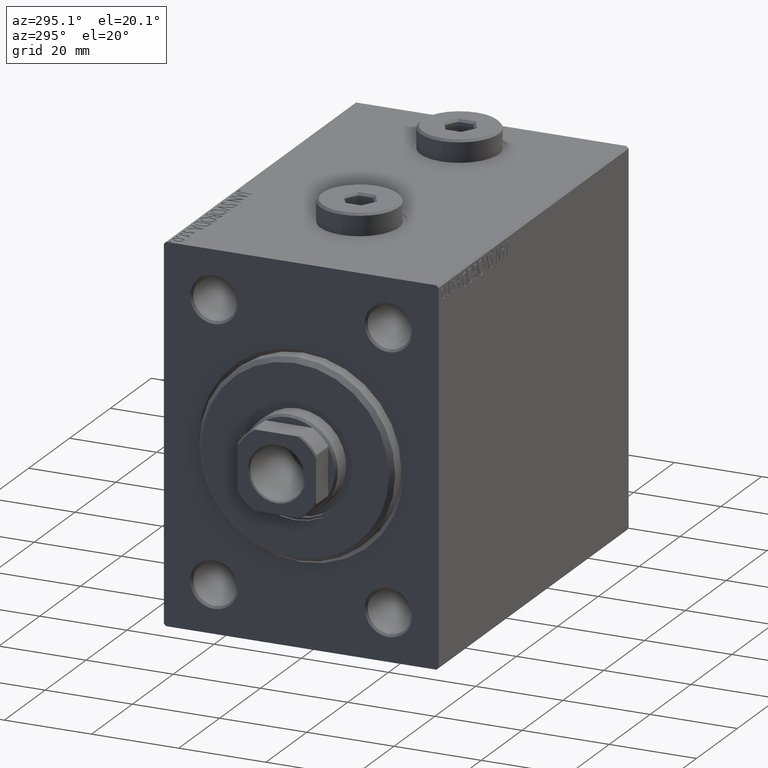
[diagram: clean part render]
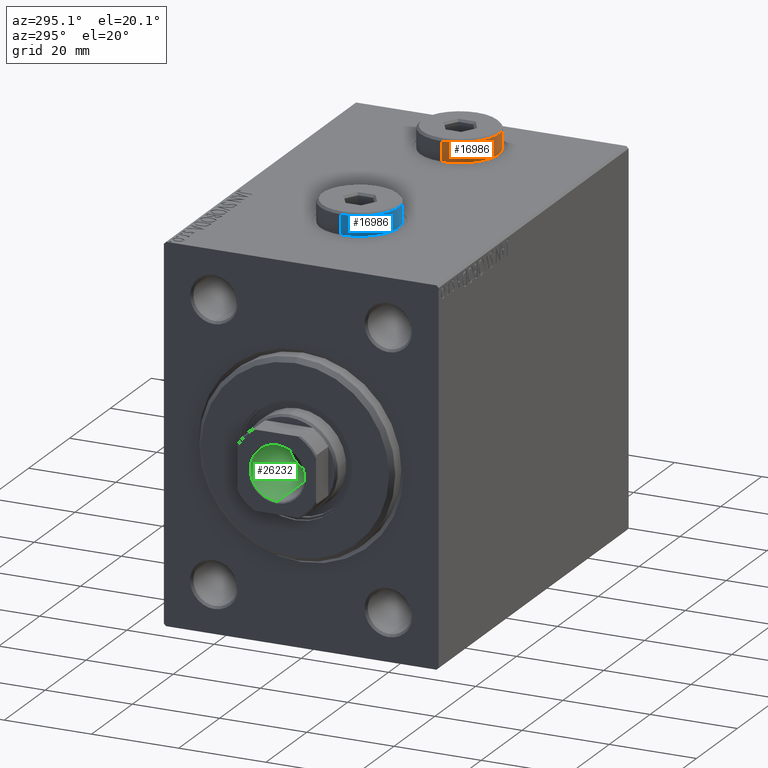
[diagram: same view with three faces highlighted in distinct colors, each labeled with its STEP entity id]
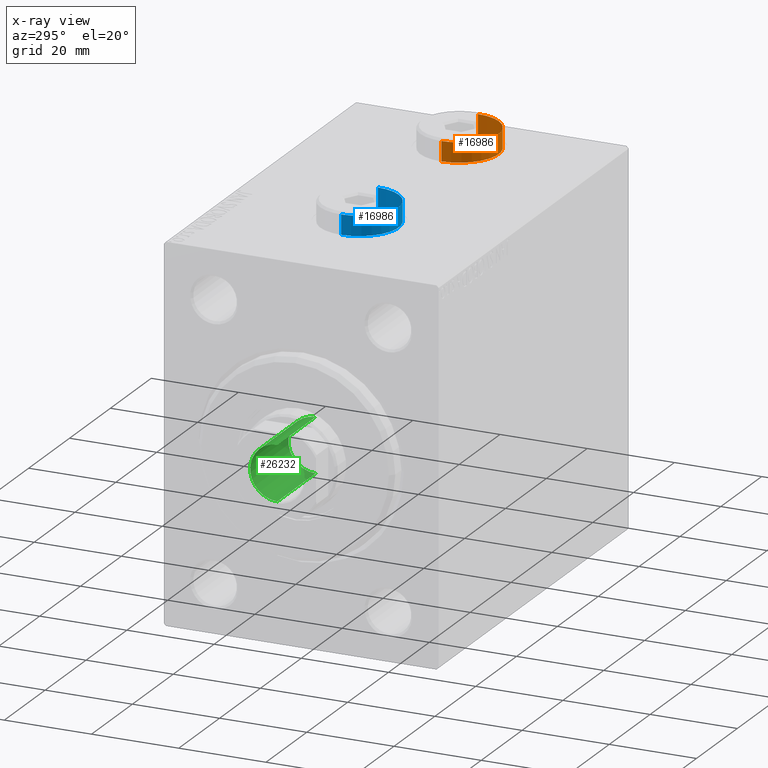
[diagram: x-ray of the same camera — body ghosted, the three highlighted faces saturated]
A machine part, auxiliary view with three faces highlighted in distinct colors.
The next image is the same camera in x-ray (body ghosted, the three faces saturated) — at least one of them is partly hidden behind the body in this view.
Their STEP definitions:

[orange] entity #16986 — the highlighted cylindrical surface (partial cylindrical patch) has radius 9 mm, axis along (-0, -0, -1).
#1273 = CARTESIAN_POINT ( 'NONE',  ( -9.000000000000001776, 0.000000000000000000, 4.500000000000006217 ) ) ;
#2347 = DIRECTION ( 'NONE',  ( 0.000000000000000000, 0.000000000000000000, -1.000000000000000000 ) ) ;
#3993 = AXIS2_PLACEMENT_3D ( 'NONE', #30683, #2347, #30022 ) ;
#6113 = AXIS2_PLACEMENT_3D ( 'NONE', #6236, #41719, #20960 ) ;
#6191 = EDGE_CURVE ( 'NONE', #23339, #33003, #32828, .T. ) ;
#6236 = CARTESIAN_POINT ( 'NONE',  ( 0.000000000000000000, 0.000000000000000000, 5.000000000000000000 ) ) ;
#9754 = VECTOR ( 'NONE', #12123, 1000.000000000000000 ) ;
#12123 = DIRECTION ( 'NONE',  ( -0.000000000000000000, -0.000000000000000000, -1.000000000000000000 ) ) ;
#12872 = CARTESIAN_POINT ( 'NONE',  ( 9.000000000000001776, 1.102182119232617911E-15, 0.000000000000000000 ) ) ;
#13077 = CARTESIAN_POINT ( 'NONE',  ( 0.000000000000000000, 0.000000000000000000, 0.000000000000000000 ) ) ;
#13521 = DIRECTION ( 'NONE',  ( 1.000000000000000000, 0.000000000000000000, 0.000000000000000000 ) ) ;
#14773 = ORIENTED_EDGE ( 'NONE', *, *, #17319, .T. ) ;
#15631 = EDGE_CURVE ( 'NONE', #40655, #33003, #33310, .T. ) ;
#16986 = ADVANCED_FACE ( 'NONE', ( #41948 ), #38023, .T. ) ;
#17319 = EDGE_CURVE ( 'NONE', #28590, #23339, #33049, .T. ) ;
#18293 = CARTESIAN_POINT ( 'NONE',  ( -9.000000000000001776, 0.000000000000000000, 5.000000000000000000 ) ) ;
#18505 = CARTESIAN_POINT ( 'NONE',  ( -9.000000000000001776, 0.000000000000000000, 0.000000000000000000 ) ) ;
#19530 = ORIENTED_EDGE ( 'NONE', *, *, #6191, .T. ) ;
#20083 = VECTOR ( 'NONE', #32358, 1000.000000000000000 ) ;
#20960 = DIRECTION ( 'NONE',  ( -1.000000000000000000, 0.000000000000000000, 0.000000000000000000 ) ) ;
#22254 = ORIENTED_EDGE ( 'NONE', *, *, #24778, .T. ) ;
#23339 = VERTEX_POINT ( 'NONE', #18505 ) ;
#24778 = EDGE_CURVE ( 'NONE', #40655, #28590, #34907, .T. ) ;
#28030 = DIRECTION ( 'NONE',  ( 0.000000000000000000, 0.000000000000000000, 1.000000000000000000 ) ) ;
#28590 = VERTEX_POINT ( 'NONE', #1273 ) ;
#30022 = DIRECTION ( 'NONE',  ( 1.000000000000000000, 0.000000000000000000, 0.000000000000000000 ) ) ;
#30624 = AXIS2_PLACEMENT_3D ( 'NONE', #13077, #28030, #13521 ) ;
#30683 = CARTESIAN_POINT ( 'NONE',  ( 0.000000000000000000, 0.000000000000000000, 4.500000000000006217 ) ) ;
#32358 = DIRECTION ( 'NONE',  ( -0.000000000000000000, -0.000000000000000000, -1.000000000000000000 ) ) ;
#32828 = CIRCLE ( 'NONE', #30624, 9.000000000000001776 ) ;
#33003 = VERTEX_POINT ( 'NONE', #12872 ) ;
#33049 = LINE ( 'NONE', #18293, #20083 ) ;
#33310 = LINE ( 'NONE', #43697, #9754 ) ;
#33911 = EDGE_LOOP ( 'NONE', ( #38252, #22254, #14773, #19530 ) ) ;
#34907 = CIRCLE ( 'NONE', #3993, 9.000000000000001776 ) ;
#38023 = CYLINDRICAL_SURFACE ( 'NONE', #6113, 9.000000000000001776 ) ;
#38252 = ORIENTED_EDGE ( 'NONE', *, *, #15631, .F. ) ;
#40245 = CARTESIAN_POINT ( 'NONE',  ( 9.000000000000001776, 1.102182119232617911E-15, 4.500000000000006217 ) ) ;
#40655 = VERTEX_POINT ( 'NONE', #40245 ) ;
#41719 = DIRECTION ( 'NONE',  ( -0.000000000000000000, -0.000000000000000000, -1.000000000000000000 ) ) ;
#41948 = FACE_OUTER_BOUND ( 'NONE', #33911, .T. ) ;
#43697 = CARTESIAN_POINT ( 'NONE',  ( 9.000000000000001776, 1.102182119232617911E-15, 5.000000000000000000 ) ) ;

[blue] entity #16986 — the highlighted cylindrical surface (partial cylindrical patch) has radius 9 mm, axis along (-0, -0, -1).
#1273 = CARTESIAN_POINT ( 'NONE',  ( -9.000000000000001776, 0.000000000000000000, 4.500000000000006217 ) ) ;
#2347 = DIRECTION ( 'NONE',  ( 0.000000000000000000, 0.000000000000000000, -1.000000000000000000 ) ) ;
#3993 = AXIS2_PLACEMENT_3D ( 'NONE', #30683, #2347, #30022 ) ;
#6113 = AXIS2_PLACEMENT_3D ( 'NONE', #6236, #41719, #20960 ) ;
#6191 = EDGE_CURVE ( 'NONE', #23339, #33003, #32828, .T. ) ;
#6236 = CARTESIAN_POINT ( 'NONE',  ( 0.000000000000000000, 0.000000000000000000, 5.000000000000000000 ) ) ;
#9754 = VECTOR ( 'NONE', #12123, 1000.000000000000000 ) ;
#12123 = DIRECTION ( 'NONE',  ( -0.000000000000000000, -0.000000000000000000, -1.000000000000000000 ) ) ;
#12872 = CARTESIAN_POINT ( 'NONE',  ( 9.000000000000001776, 1.102182119232617911E-15, 0.000000000000000000 ) ) ;
#13077 = CARTESIAN_POINT ( 'NONE',  ( 0.000000000000000000, 0.000000000000000000, 0.000000000000000000 ) ) ;
#13521 = DIRECTION ( 'NONE',  ( 1.000000000000000000, 0.000000000000000000, 0.000000000000000000 ) ) ;
#14773 = ORIENTED_EDGE ( 'NONE', *, *, #17319, .T. ) ;
#15631 = EDGE_CURVE ( 'NONE', #40655, #33003, #33310, .T. ) ;
#16986 = ADVANCED_FACE ( 'NONE', ( #41948 ), #38023, .T. ) ;
#17319 = EDGE_CURVE ( 'NONE', #28590, #23339, #33049, .T. ) ;
#18293 = CARTESIAN_POINT ( 'NONE',  ( -9.000000000000001776, 0.000000000000000000, 5.000000000000000000 ) ) ;
#18505 = CARTESIAN_POINT ( 'NONE',  ( -9.000000000000001776, 0.000000000000000000, 0.000000000000000000 ) ) ;
#19530 = ORIENTED_EDGE ( 'NONE', *, *, #6191, .T. ) ;
#20083 = VECTOR ( 'NONE', #32358, 1000.000000000000000 ) ;
#20960 = DIRECTION ( 'NONE',  ( -1.000000000000000000, 0.000000000000000000, 0.000000000000000000 ) ) ;
#22254 = ORIENTED_EDGE ( 'NONE', *, *, #24778, .T. ) ;
#23339 = VERTEX_POINT ( 'NONE', #18505 ) ;
#24778 = EDGE_CURVE ( 'NONE', #40655, #28590, #34907, .T. ) ;
#28030 = DIRECTION ( 'NONE',  ( 0.000000000000000000, 0.000000000000000000, 1.000000000000000000 ) ) ;
#28590 = VERTEX_POINT ( 'NONE', #1273 ) ;
#30022 = DIRECTION ( 'NONE',  ( 1.000000000000000000, 0.000000000000000000, 0.000000000000000000 ) ) ;
#30624 = AXIS2_PLACEMENT_3D ( 'NONE', #13077, #28030, #13521 ) ;
#30683 = CARTESIAN_POINT ( 'NONE',  ( 0.000000000000000000, 0.000000000000000000, 4.500000000000006217 ) ) ;
#32358 = DIRECTION ( 'NONE',  ( -0.000000000000000000, -0.000000000000000000, -1.000000000000000000 ) ) ;
#32828 = CIRCLE ( 'NONE', #30624, 9.000000000000001776 ) ;
#33003 = VERTEX_POINT ( 'NONE', #12872 ) ;
#33049 = LINE ( 'NONE', #18293, #20083 ) ;
#33310 = LINE ( 'NONE', #43697, #9754 ) ;
#33911 = EDGE_LOOP ( 'NONE', ( #38252, #22254, #14773, #19530 ) ) ;
#34907 = CIRCLE ( 'NONE', #3993, 9.000000000000001776 ) ;
#38023 = CYLINDRICAL_SURFACE ( 'NONE', #6113, 9.000000000000001776 ) ;
#38252 = ORIENTED_EDGE ( 'NONE', *, *, #15631, .F. ) ;
#40245 = CARTESIAN_POINT ( 'NONE',  ( 9.000000000000001776, 1.102182119232617911E-15, 4.500000000000006217 ) ) ;
#40655 = VERTEX_POINT ( 'NONE', #40245 ) ;
#41719 = DIRECTION ( 'NONE',  ( -0.000000000000000000, -0.000000000000000000, -1.000000000000000000 ) ) ;
#41948 = FACE_OUTER_BOUND ( 'NONE', #33911, .T. ) ;
#43697 = CARTESIAN_POINT ( 'NONE',  ( 9.000000000000001776, 1.102182119232617911E-15, 5.000000000000000000 ) ) ;

[green] entity #26232 — the highlighted cylindrical surface (edge-blend (fillet) strip) has radius 6.25 mm, axis along (-1, 0, 0).
#542 = CYLINDRICAL_SURFACE ( 'NONE', #22462, 6.249999999999996447 ) ;
#995 = CARTESIAN_POINT ( 'NONE',  ( 0.000000000000000000, 0.000000000000000000, 93.00000000000000000 ) ) ;
#1703 = CIRCLE ( 'NONE', #4672, 6.249999999999996447 ) ;
#4672 = AXIS2_PLACEMENT_3D ( 'NONE', #11447, #8000, #15592 ) ;
#4701 = DIRECTION ( 'NONE',  ( -0.000000000000000000, -0.000000000000000000, 1.000000000000000000 ) ) ;
#6860 = VERTEX_POINT ( 'NONE', #44926 ) ;
#6910 = EDGE_CURVE ( 'NONE', #24262, #30228, #32687, .T. ) ;
#7914 = FACE_OUTER_BOUND ( 'NONE', #42191, .T. ) ;
#8000 = DIRECTION ( 'NONE',  ( 0.000000000000000000, 0.000000000000000000, 1.000000000000000000 ) ) ;
#8045 = CARTESIAN_POINT ( 'NONE',  ( 6.249999999999996447, 0.000000000000000000, 93.00000000000000000 ) ) ;
#8878 = EDGE_CURVE ( 'NONE', #35527, #6860, #24436, .T. ) ;
#9718 = AXIS2_PLACEMENT_3D ( 'NONE', #12989, #16886, #10214 ) ;
#10214 = DIRECTION ( 'NONE',  ( 1.000000000000000000, 0.000000000000000000, 0.000000000000000000 ) ) ;
#11169 = ORIENTED_EDGE ( 'NONE', *, *, #17095, .T. ) ;
#11447 = CARTESIAN_POINT ( 'NONE',  ( 0.000000000000000000, 0.000000000000000000, 92.70000000000000284 ) ) ;
#12989 = CARTESIAN_POINT ( 'NONE',  ( 0.000000000000000000, 0.000000000000000000, 74.00000000000000000 ) ) ;
#14337 = CARTESIAN_POINT ( 'NONE',  ( -6.249999999999995559, 7.654042494670950704E-16, 74.00000000000000000 ) ) ;
#14925 = EDGE_CURVE ( 'NONE', #24262, #35527, #22237, .T. ) ;
#15415 = DIRECTION ( 'NONE',  ( -0.000000000000000000, -0.000000000000000000, 1.000000000000000000 ) ) ;
#15592 = DIRECTION ( 'NONE',  ( 1.000000000000000000, 0.000000000000000000, 0.000000000000000000 ) ) ;
#16886 = DIRECTION ( 'NONE',  ( -0.000000000000000000, -0.000000000000000000, 1.000000000000000000 ) ) ;
#17095 = EDGE_CURVE ( 'NONE', #30228, #6860, #1703, .T. ) ;
#22208 = DIRECTION ( 'NONE',  ( 1.000000000000000000, 0.000000000000000000, 0.000000000000000000 ) ) ;
#22237 = CIRCLE ( 'NONE', #9718, 6.249999999999995559 ) ;
#22462 = AXIS2_PLACEMENT_3D ( 'NONE', #995, #4701, #22208 ) ;
#24262 = VERTEX_POINT ( 'NONE', #35206 ) ;
#24436 = LINE ( 'NONE', #42640, #27766 ) ;
#25115 = DIRECTION ( 'NONE',  ( -0.000000000000000000, -0.000000000000000000, 1.000000000000000000 ) ) ;
#26232 = ADVANCED_FACE ( 'NONE', ( #7914 ), #542, .F. ) ;
#27766 = VECTOR ( 'NONE', #25115, 1000.000000000000000 ) ;
#28356 = ORIENTED_EDGE ( 'NONE', *, *, #6910, .T. ) ;
#30228 = VERTEX_POINT ( 'NONE', #30636 ) ;
#30636 = CARTESIAN_POINT ( 'NONE',  ( 6.249999999999996447, 0.000000000000000000, 92.70000000000000284 ) ) ;
#32687 = LINE ( 'NONE', #8045, #32861 ) ;
#32861 = VECTOR ( 'NONE', #15415, 1000.000000000000000 ) ;
#34865 = ORIENTED_EDGE ( 'NONE', *, *, #8878, .F. ) ;
#35206 = CARTESIAN_POINT ( 'NONE',  ( 6.249999999999995559, 0.000000000000000000, 74.00000000000000000 ) ) ;
#35527 = VERTEX_POINT ( 'NONE', #14337 ) ;
#36250 = ORIENTED_EDGE ( 'NONE', *, *, #14925, .F. ) ;
#42191 = EDGE_LOOP ( 'NONE', ( #34865, #36250, #28356, #11169 ) ) ;
#42640 = CARTESIAN_POINT ( 'NONE',  ( -6.249999999999996447, 7.654042494670952676E-16, 93.00000000000000000 ) ) ;
#44926 = CARTESIAN_POINT ( 'NONE',  ( -6.249999999999996447, 7.654042494670952676E-16, 92.70000000000000284 ) ) ;